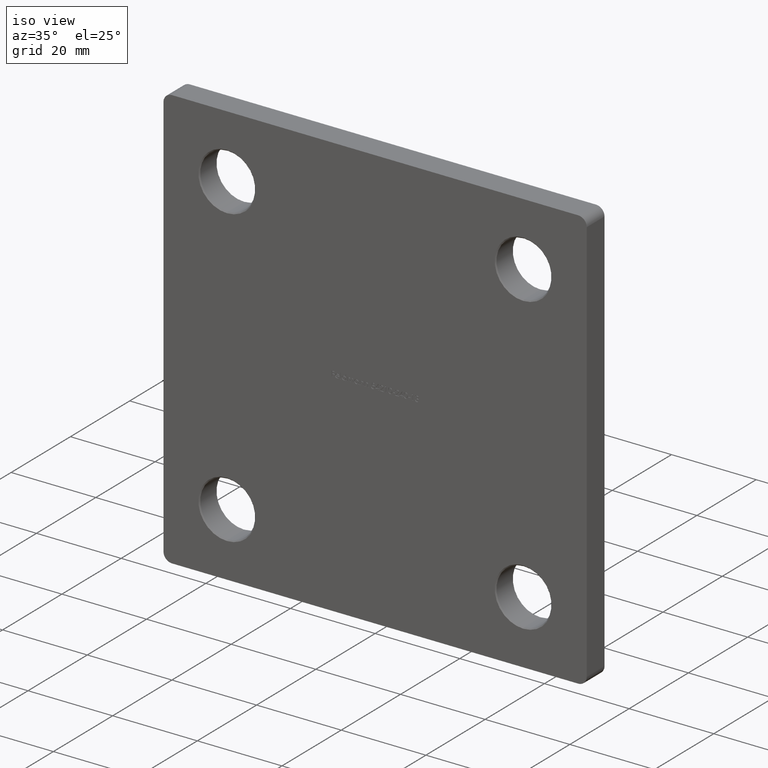
[diagram: clean part render]
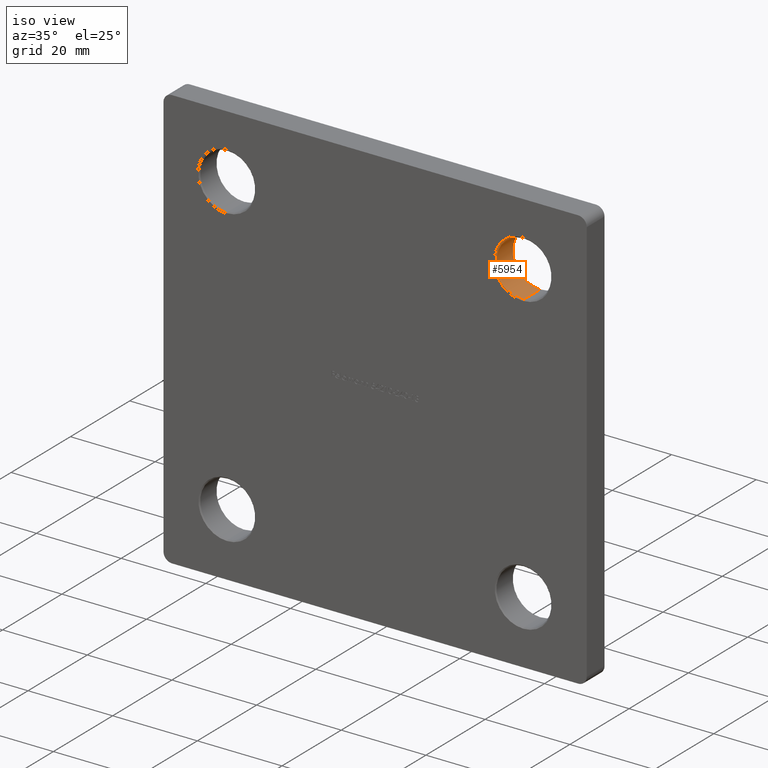
[diagram: same view with one face highlighted and labeled with its STEP entity id]
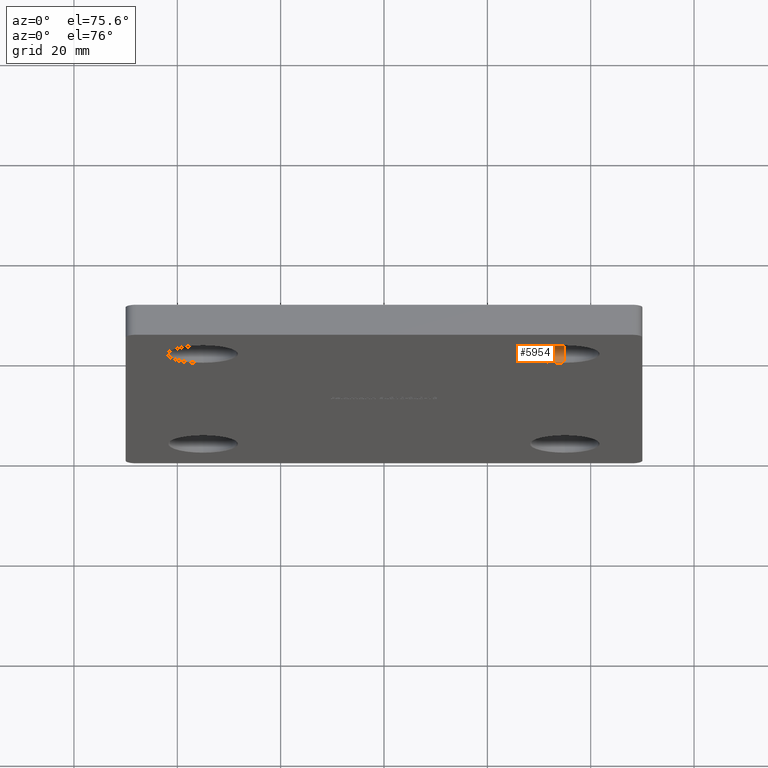
[diagram: same view with one face highlighted and labeled with its STEP entity id]
A machine part, iso view. The second image highlights one B-rep face of the part: STEP entity #5954.
A second angle (auxiliary view) of the same face is appended — the face is thin or edge-on in the first view.
In plain terms, the highlighted cylindrical surface (edge-blend (fillet) strip) has radius 6.5 mm, axis along (-0, 1, -0).
Its self-contained STEP definition (entity closure, byte-faithful):
#211 = EDGE_CURVE ( 'NONE', #1416, #12623, #13524, .T. ) ;
#747 = ORIENTED_EDGE ( 'NONE', *, *, #211, .T. ) ;
#1052 = DIRECTION ( 'NONE',  ( -0.000000000000000000, 1.000000000000000000, -0.000000000000000000 ) ) ;
#1144 = CARTESIAN_POINT ( 'NONE',  ( 35.00000000000000000, 0.000000000000000000, 35.00000000000000000 ) ) ;
#1416 = VERTEX_POINT ( 'NONE', #13224 ) ;
#1617 = CIRCLE ( 'NONE', #5417, 6.499999999999999112 ) ;
#2491 = ORIENTED_EDGE ( 'NONE', *, *, #13563, .T. ) ;
#2952 = EDGE_CURVE ( 'NONE', #12623, #3573, #5399, .T. ) ;
#3247 = AXIS2_PLACEMENT_3D ( 'NONE', #1144, #1052, #13265 ) ;
#3573 = VERTEX_POINT ( 'NONE', #13588 ) ;
#3657 = DIRECTION ( 'NONE',  ( -0.000000000000000000, 1.000000000000000000, -0.000000000000000000 ) ) ;
#3729 = CARTESIAN_POINT ( 'NONE',  ( 35.00000000000000000, 5.749999999999973355, 35.00000000000000000 ) ) ;
#3877 = VECTOR ( 'NONE', #3657, 1000.000000000000000 ) ;
#3993 = FACE_OUTER_BOUND ( 'NONE', #11419, .T. ) ;
#4511 = VERTEX_POINT ( 'NONE', #9596 ) ;
#5399 = CIRCLE ( 'NONE', #6080, 6.499999999999999112 ) ;
#5417 = AXIS2_PLACEMENT_3D ( 'NONE', #13077, #14199, #8774 ) ;
#5954 = ADVANCED_FACE ( 'NONE', ( #3993 ), #6589, .F. ) ;
#5984 = LINE ( 'NONE', #8666, #7874 ) ;
#6080 = AXIS2_PLACEMENT_3D ( 'NONE', #3729, #8074, #8269 ) ;
#6589 = CYLINDRICAL_SURFACE ( 'NONE', #3247, 6.499999999999999112 ) ;
#7037 = CARTESIAN_POINT ( 'NONE',  ( 35.00000000000000000, 0.000000000000000000, 28.50000000000000355 ) ) ;
#7874 = VECTOR ( 'NONE', #9825, 1000.000000000000000 ) ;
#8074 = DIRECTION ( 'NONE',  ( 0.000000000000000000, 1.000000000000000000, 0.000000000000000000 ) ) ;
#8269 = DIRECTION ( 'NONE',  ( 0.000000000000000000, 0.000000000000000000, 1.000000000000000000 ) ) ;
#8666 = CARTESIAN_POINT ( 'NONE',  ( 35.00000000000000000, 0.000000000000000000, 41.50000000000000000 ) ) ;
#8774 = DIRECTION ( 'NONE',  ( 0.000000000000000000, 0.000000000000000000, 1.000000000000000000 ) ) ;
#9265 = ORIENTED_EDGE ( 'NONE', *, *, #2952, .T. ) ;
#9596 = CARTESIAN_POINT ( 'NONE',  ( 35.00000000000000000, 0.2500000000000132672, 41.50000000000000000 ) ) ;
#9825 = DIRECTION ( 'NONE',  ( -0.000000000000000000, 1.000000000000000000, -0.000000000000000000 ) ) ;
#11419 = EDGE_LOOP ( 'NONE', ( #2491, #747, #9265, #11512 ) ) ;
#11512 = ORIENTED_EDGE ( 'NONE', *, *, #13534, .F. ) ;
#12163 = CARTESIAN_POINT ( 'NONE',  ( 35.00000000000000000, 5.749999999999973355, 28.50000000000000355 ) ) ;
#12623 = VERTEX_POINT ( 'NONE', #12163 ) ;
#13077 = CARTESIAN_POINT ( 'NONE',  ( 35.00000000000000000, 0.2500000000000132672, 35.00000000000000000 ) ) ;
#13224 = CARTESIAN_POINT ( 'NONE',  ( 35.00000000000000000, 0.2500000000000132672, 28.50000000000000355 ) ) ;
#13265 = DIRECTION ( 'NONE',  ( 0.000000000000000000, 0.000000000000000000, 1.000000000000000000 ) ) ;
#13524 = LINE ( 'NONE', #7037, #3877 ) ;
#13534 = EDGE_CURVE ( 'NONE', #4511, #3573, #5984, .T. ) ;
#13563 = EDGE_CURVE ( 'NONE', #4511, #1416, #1617, .T. ) ;
#13588 = CARTESIAN_POINT ( 'NONE',  ( 35.00000000000000000, 5.749999999999973355, 41.50000000000000000 ) ) ;
#14199 = DIRECTION ( 'NONE',  ( -0.000000000000000000, -1.000000000000000000, -0.000000000000000000 ) ) ;